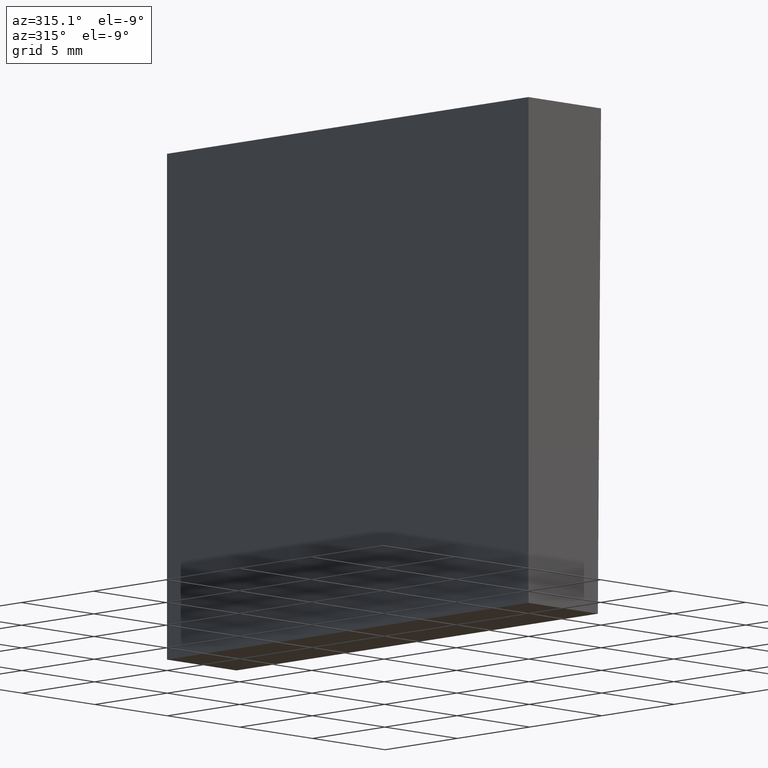
[diagram: clean part render]
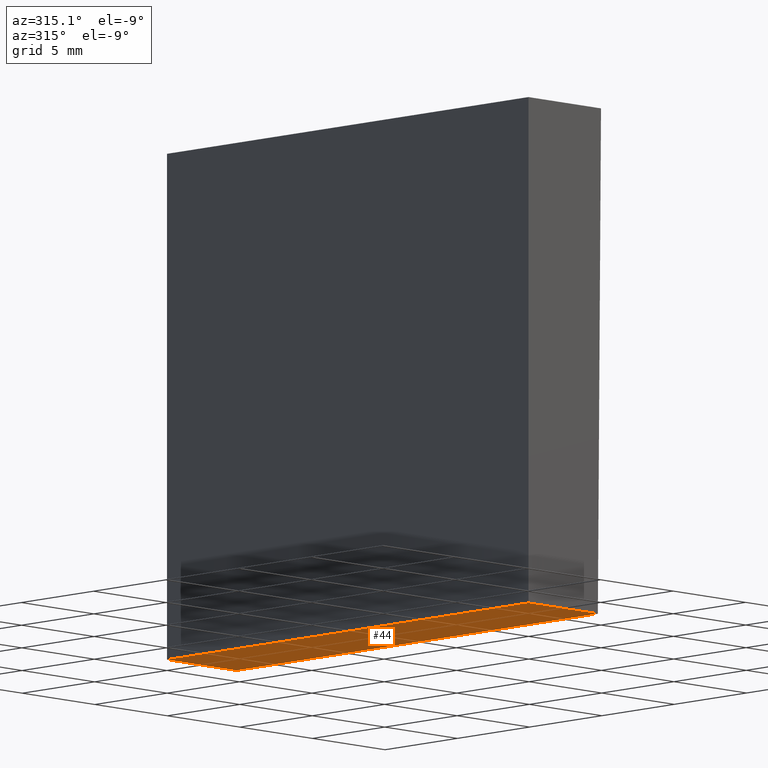
[diagram: same view with one face highlighted and labeled with its STEP entity id]
A machine part, auxiliary view. The second image highlights one B-rep face of the part: STEP entity #44.
In plain terms, the highlighted planar face has unit normal (0, 0, 1).
Its self-contained STEP definition (entity closure, byte-faithful):
#3 = VECTOR ( 'NONE', #130, 1000.000000000000000 ) ;
#12 = DIRECTION ( 'NONE',  ( 0.0000000000000000000, 0.0000000000000000000, 1.000000000000000000 ) ) ;
#16 = EDGE_CURVE ( 'NONE', #29, #186, #54, .T. ) ;
#29 = VERTEX_POINT ( 'NONE', #43 ) ;
#38 = CARTESIAN_POINT ( 'NONE',  ( 1.734723475976807100E-015, 0.0000000000000000000, -12.50000000000000000 ) ) ;
#39 = DIRECTION ( 'NONE',  ( -1.000000000000000000, -0.0000000000000000000, -0.0000000000000000000 ) ) ;
#43 = CARTESIAN_POINT ( 'NONE',  ( 1.734723475976807100E-015, 25.00000000000000000, -12.50000000000000000 ) ) ;
#44 = ADVANCED_FACE ( 'NONE', ( #89 ), #151, .F. ) ;
#49 = CARTESIAN_POINT ( 'NONE',  ( 1.734723475976807100E-015, 0.0000000000000000000, -12.50000000000000000 ) ) ;
#51 = CARTESIAN_POINT ( 'NONE',  ( 4.781828305231207400, 25.00000000000000000, -12.50000000000000000 ) ) ;
#54 = LINE ( 'NONE', #150, #138 ) ;
#56 = DIRECTION ( 'NONE',  ( -0.0000000000000000000, -1.000000000000000000, -0.0000000000000000000 ) ) ;
#57 = ORIENTED_EDGE ( 'NONE', *, *, #134, .F. ) ;
#65 = CARTESIAN_POINT ( 'NONE',  ( 4.781828305231207400, 25.00000000000000000, -12.50000000000000000 ) ) ;
#70 = EDGE_CURVE ( 'NONE', #160, #111, #202, .T. ) ;
#73 = ORIENTED_EDGE ( 'NONE', *, *, #16, .F. ) ;
#85 = CARTESIAN_POINT ( 'NONE',  ( 4.781828305231207400, 0.0000000000000000000, -12.50000000000000000 ) ) ;
#89 = FACE_OUTER_BOUND ( 'NONE', #192, .T. ) ;
#101 = DIRECTION ( 'NONE',  ( -0.0000000000000000000, -1.000000000000000000, -0.0000000000000000000 ) ) ;
#102 = DIRECTION ( 'NONE',  ( 1.000000000000000000, 0.0000000000000000000, -0.0000000000000000000 ) ) ;
#103 = VECTOR ( 'NONE', #101, 1000.000000000000000 ) ;
#111 = VERTEX_POINT ( 'NONE', #85 ) ;
#117 = VECTOR ( 'NONE', #39, 1000.000000000000000 ) ;
#125 = LINE ( 'NONE', #49, #3 ) ;
#128 = ORIENTED_EDGE ( 'NONE', *, *, #70, .T. ) ;
#130 = DIRECTION ( 'NONE',  ( -1.000000000000000000, -0.0000000000000000000, -0.0000000000000000000 ) ) ;
#133 = CARTESIAN_POINT ( 'NONE',  ( 1.734723475976807100E-015, 25.00000000000000000, -12.50000000000000000 ) ) ;
#134 = EDGE_CURVE ( 'NONE', #160, #29, #159, .T. ) ;
#135 = AXIS2_PLACEMENT_3D ( 'NONE', #133, #12, #102 ) ;
#138 = VECTOR ( 'NONE', #56, 1000.000000000000000 ) ;
#141 = ORIENTED_EDGE ( 'NONE', *, *, #169, .T. ) ;
#150 = CARTESIAN_POINT ( 'NONE',  ( 1.734723475976807100E-015, 25.00000000000000000, -12.50000000000000000 ) ) ;
#151 = PLANE ( 'NONE',  #135 ) ;
#159 = LINE ( 'NONE', #162, #117 ) ;
#160 = VERTEX_POINT ( 'NONE', #65 ) ;
#162 = CARTESIAN_POINT ( 'NONE',  ( 1.734723475976807100E-015, 25.00000000000000000, -12.50000000000000000 ) ) ;
#169 = EDGE_CURVE ( 'NONE', #111, #186, #125, .T. ) ;
#186 = VERTEX_POINT ( 'NONE', #38 ) ;
#192 = EDGE_LOOP ( 'NONE', ( #141, #73, #57, #128 ) ) ;
#202 = LINE ( 'NONE', #51, #103 ) ;